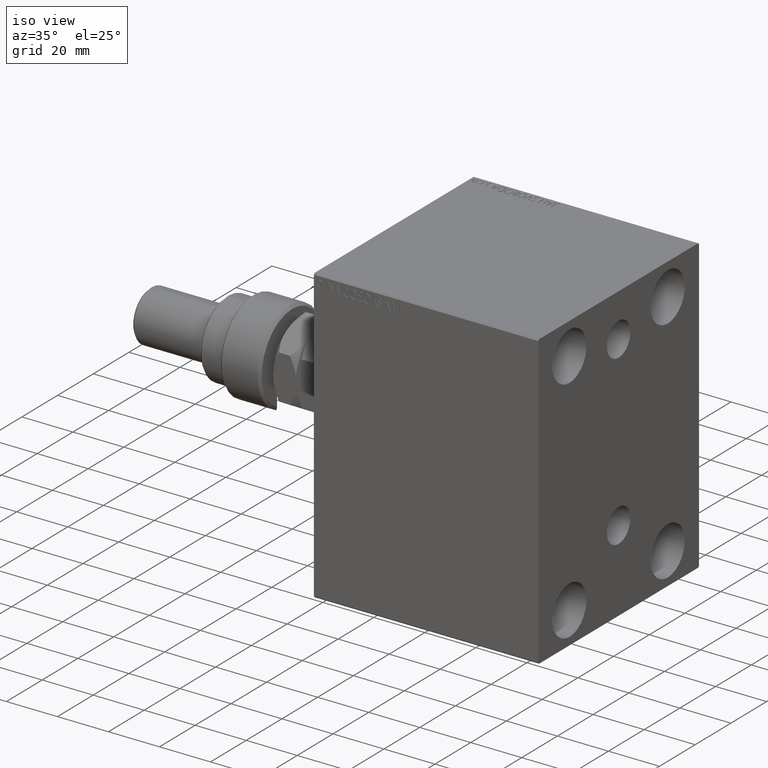
[diagram: clean part render]
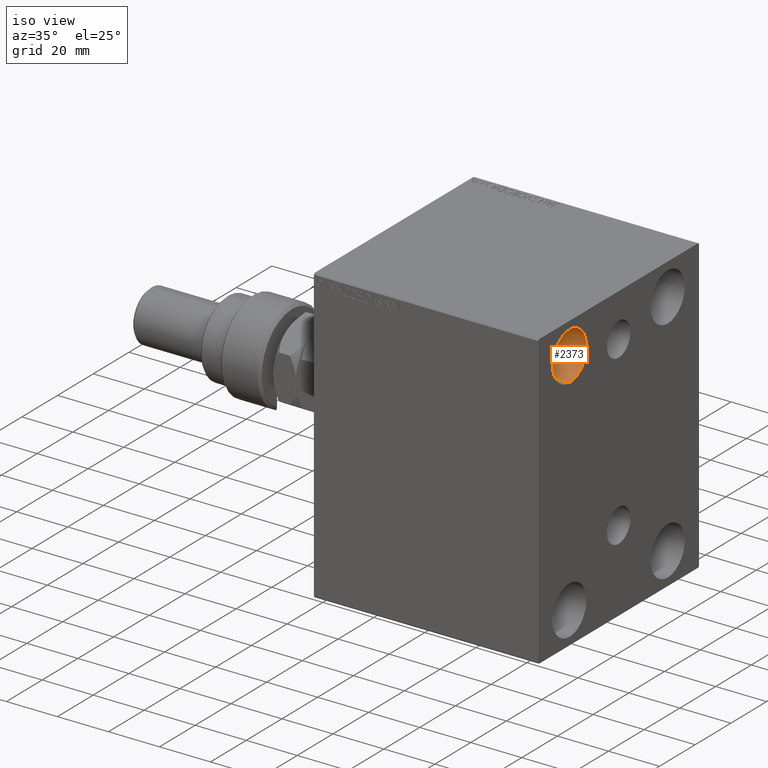
[diagram: same view with one face highlighted and labeled with its STEP entity id]
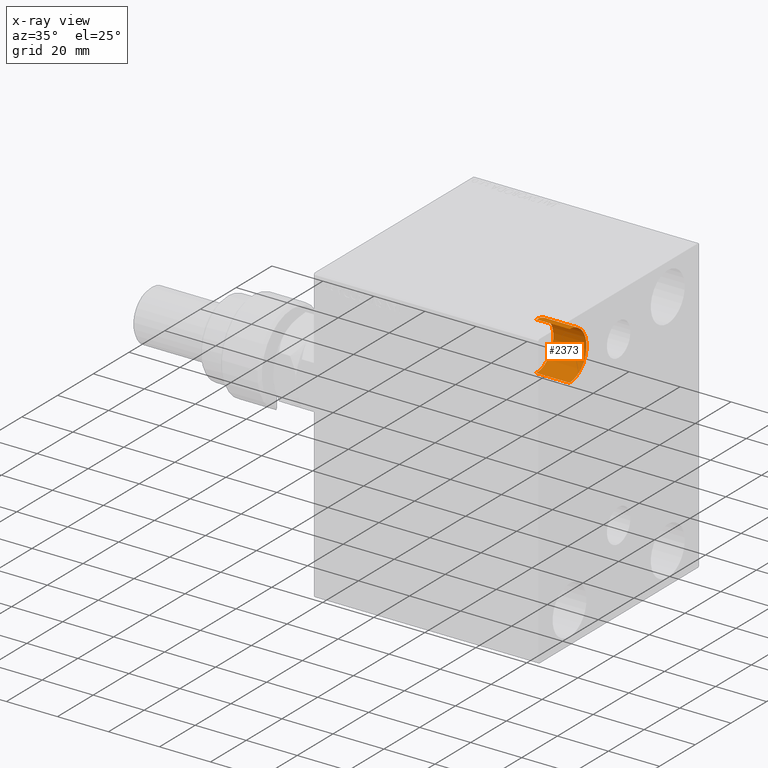
[diagram: x-ray of the same camera — body ghosted, the highlighted face saturated]
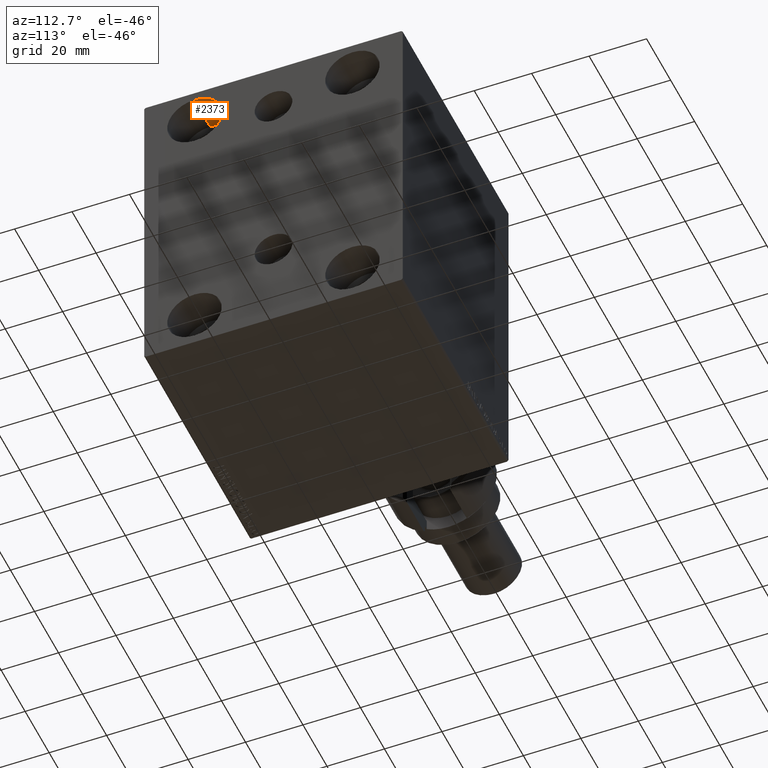
[diagram: same view with one face highlighted and labeled with its STEP entity id]
A machine part, iso view. The second image highlights one B-rep face of the part: STEP entity #2373.
The next image is the same camera in x-ray: the body ghosted, the highlighted face saturated — about 0% of this face is hidden behind the body in this view.
A second angle (auxiliary view) of the same face is appended — the face is thin or edge-on in the first view.
In plain terms, the highlighted cylindrical surface (edge-blend (fillet) strip) has radius 9.5 mm, axis along (1, 0, 0).
Its self-contained STEP definition (entity closure, byte-faithful):
#2373 = ADVANCED_FACE ( 'NONE', ( #34898 ), #31138, .F. ) ;
#2747 = VERTEX_POINT ( 'NONE', #18332 ) ;
#2982 = DIRECTION ( 'NONE',  ( -1.000000000000000000, -0.000000000000000000, -0.000000000000000000 ) ) ;
#6191 = CARTESIAN_POINT ( 'NONE',  ( 75.00000000000000000, -27.49999999999998934, 35.50000000000000711 ) ) ;
#9083 = EDGE_CURVE ( 'NONE', #18197, #2747, #34956, .T. ) ;
#9704 = CIRCLE ( 'NONE', #21796, 9.500000000000001776 ) ;
#9911 = DIRECTION ( 'NONE',  ( 1.000000000000000000, -0.000000000000000000, -0.000000000000000000 ) ) ;
#10279 = VERTEX_POINT ( 'NONE', #23897 ) ;
#11793 = ORIENTED_EDGE ( 'NONE', *, *, #25357, .F. ) ;
#11987 = DIRECTION ( 'NONE',  ( -1.000000000000000000, -0.000000000000000000, -0.000000000000000000 ) ) ;
#13672 = CARTESIAN_POINT ( 'NONE',  ( 75.00000000000000000, -27.49999999999998934, 45.00000000000000711 ) ) ;
#15800 = VECTOR ( 'NONE', #46262, 1000.000000000000000 ) ;
#17237 = LINE ( 'NONE', #25257, #29846 ) ;
#18197 = VERTEX_POINT ( 'NONE', #31972 ) ;
#18332 = CARTESIAN_POINT ( 'NONE',  ( 88.00000000000000000, -27.49999999999998934, 35.50000000000000711 ) ) ;
#20198 = ORIENTED_EDGE ( 'NONE', *, *, #45120, .T. ) ;
#20225 = AXIS2_PLACEMENT_3D ( 'NONE', #13672, #38182, #20306 ) ;
#20306 = DIRECTION ( 'NONE',  ( 0.000000000000000000, 0.000000000000000000, -1.000000000000000000 ) ) ;
#20792 = VERTEX_POINT ( 'NONE', #30492 ) ;
#21796 = AXIS2_PLACEMENT_3D ( 'NONE', #23081, #11987, #33000 ) ;
#23081 = CARTESIAN_POINT ( 'NONE',  ( 75.00000000000000000, -27.49999999999998934, 45.00000000000000711 ) ) ;
#23897 = CARTESIAN_POINT ( 'NONE',  ( 75.00000000000000000, -27.49999999999998934, 54.50000000000000711 ) ) ;
#25164 = CARTESIAN_POINT ( 'NONE',  ( 88.00000000000000000, -27.49999999999998934, 45.00000000000000711 ) ) ;
#25257 = CARTESIAN_POINT ( 'NONE',  ( 75.00000000000000000, -27.49999999999998934, 54.50000000000000711 ) ) ;
#25357 = EDGE_CURVE ( 'NONE', #20792, #2747, #36485, .T. ) ;
#28456 = DIRECTION ( 'NONE',  ( 0.000000000000000000, 0.000000000000000000, 1.000000000000000000 ) ) ;
#29846 = VECTOR ( 'NONE', #9911, 1000.000000000000000 ) ;
#30492 = CARTESIAN_POINT ( 'NONE',  ( 88.00000000000000000, -27.49999999999998934, 54.50000000000000711 ) ) ;
#31138 = CYLINDRICAL_SURFACE ( 'NONE', #20225, 9.500000000000001776 ) ;
#31972 = CARTESIAN_POINT ( 'NONE',  ( 75.00000000000000000, -27.49999999999998934, 35.50000000000000711 ) ) ;
#32360 = ORIENTED_EDGE ( 'NONE', *, *, #9083, .T. ) ;
#33000 = DIRECTION ( 'NONE',  ( 0.000000000000000000, 0.000000000000000000, 1.000000000000000000 ) ) ;
#33455 = ORIENTED_EDGE ( 'NONE', *, *, #33497, .F. ) ;
#33497 = EDGE_CURVE ( 'NONE', #10279, #20792, #17237, .T. ) ;
#34898 = FACE_OUTER_BOUND ( 'NONE', #42955, .T. ) ;
#34956 = LINE ( 'NONE', #6191, #15800 ) ;
#36485 = CIRCLE ( 'NONE', #41740, 9.500000000000001776 ) ;
#38182 = DIRECTION ( 'NONE',  ( 1.000000000000000000, -0.000000000000000000, -0.000000000000000000 ) ) ;
#41740 = AXIS2_PLACEMENT_3D ( 'NONE', #25164, #2982, #28456 ) ;
#42955 = EDGE_LOOP ( 'NONE', ( #33455, #20198, #32360, #11793 ) ) ;
#45120 = EDGE_CURVE ( 'NONE', #10279, #18197, #9704, .T. ) ;
#46262 = DIRECTION ( 'NONE',  ( 1.000000000000000000, -0.000000000000000000, -0.000000000000000000 ) ) ;